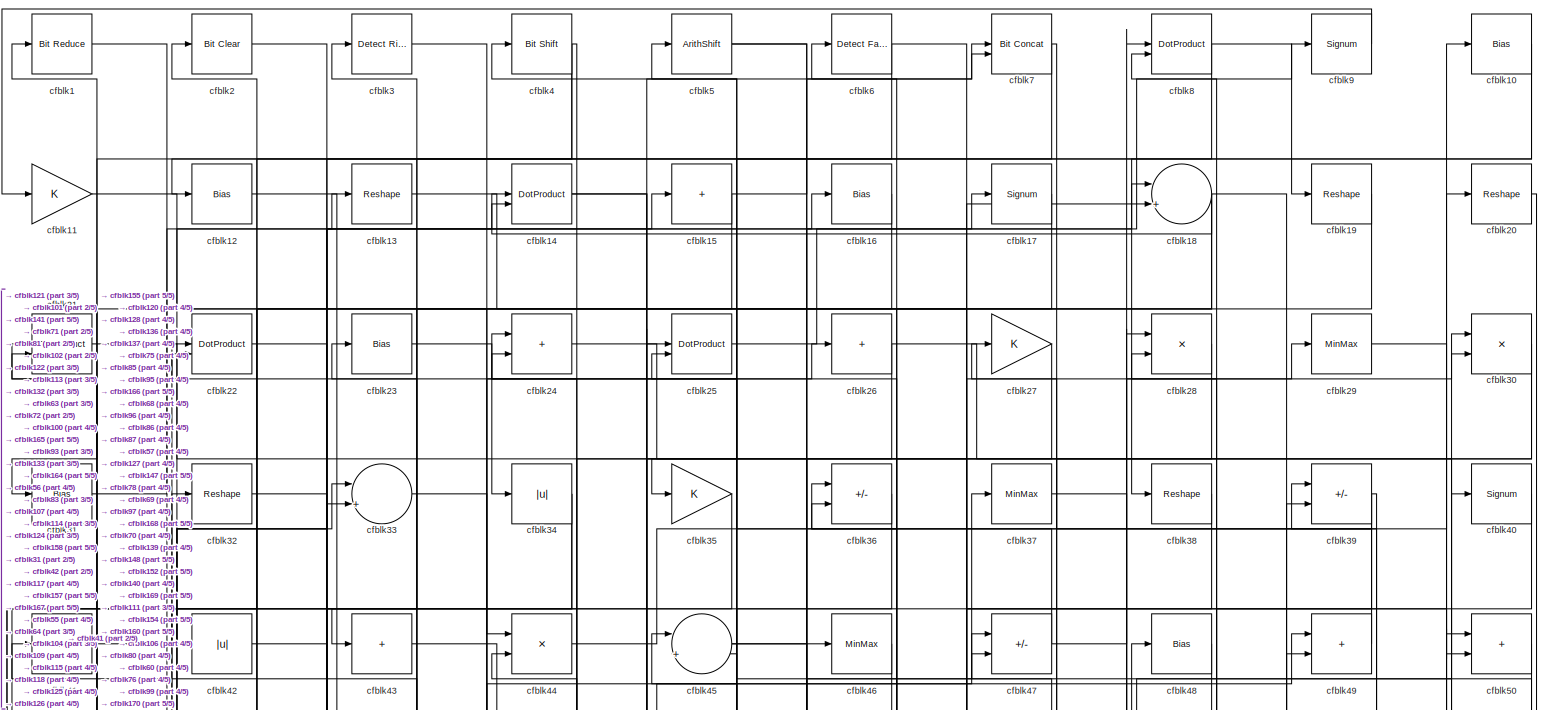
[diagram: root canvas - part 1/5, full width, top band]
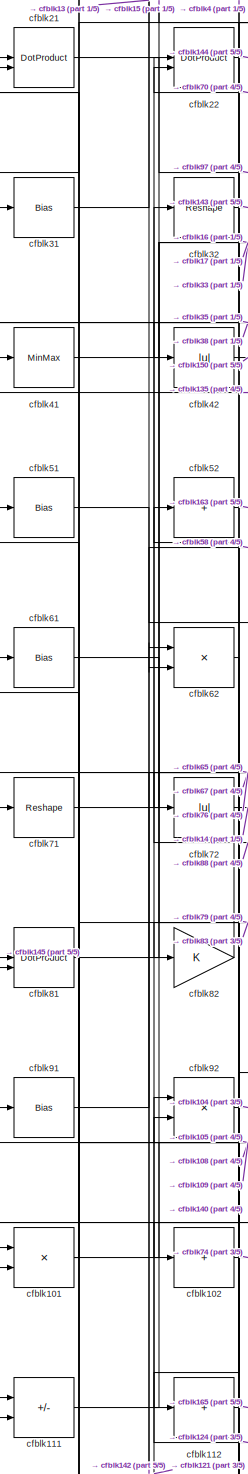
[diagram: root canvas - part 2/5, middle left region]
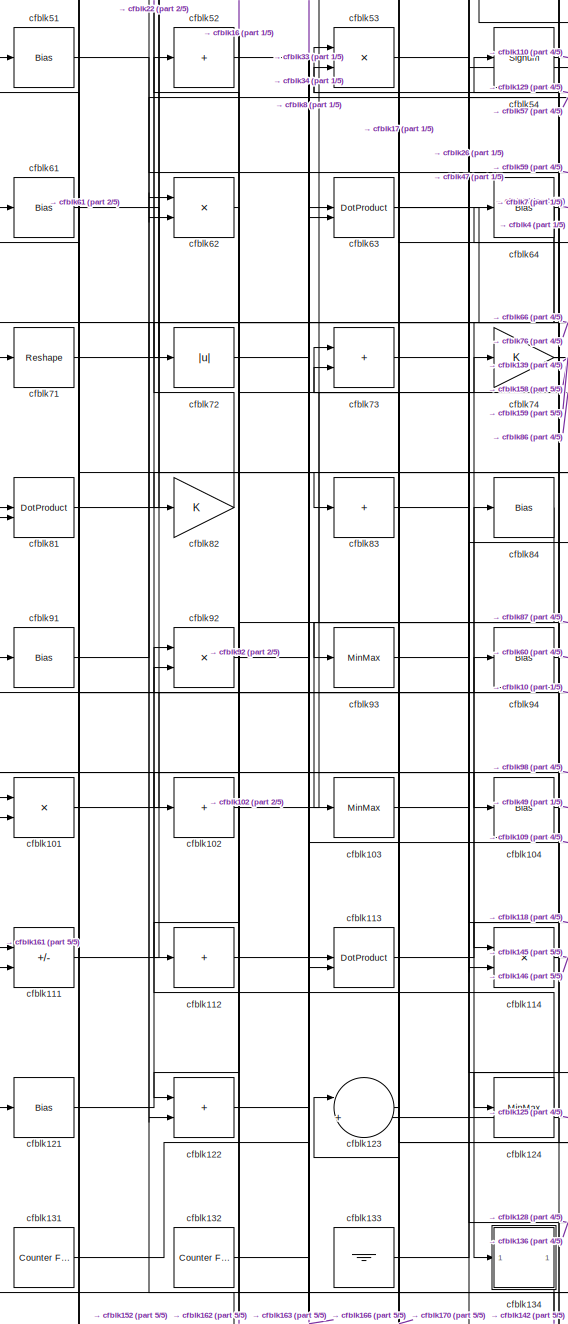
[diagram: root canvas - part 3/5, middle left region]
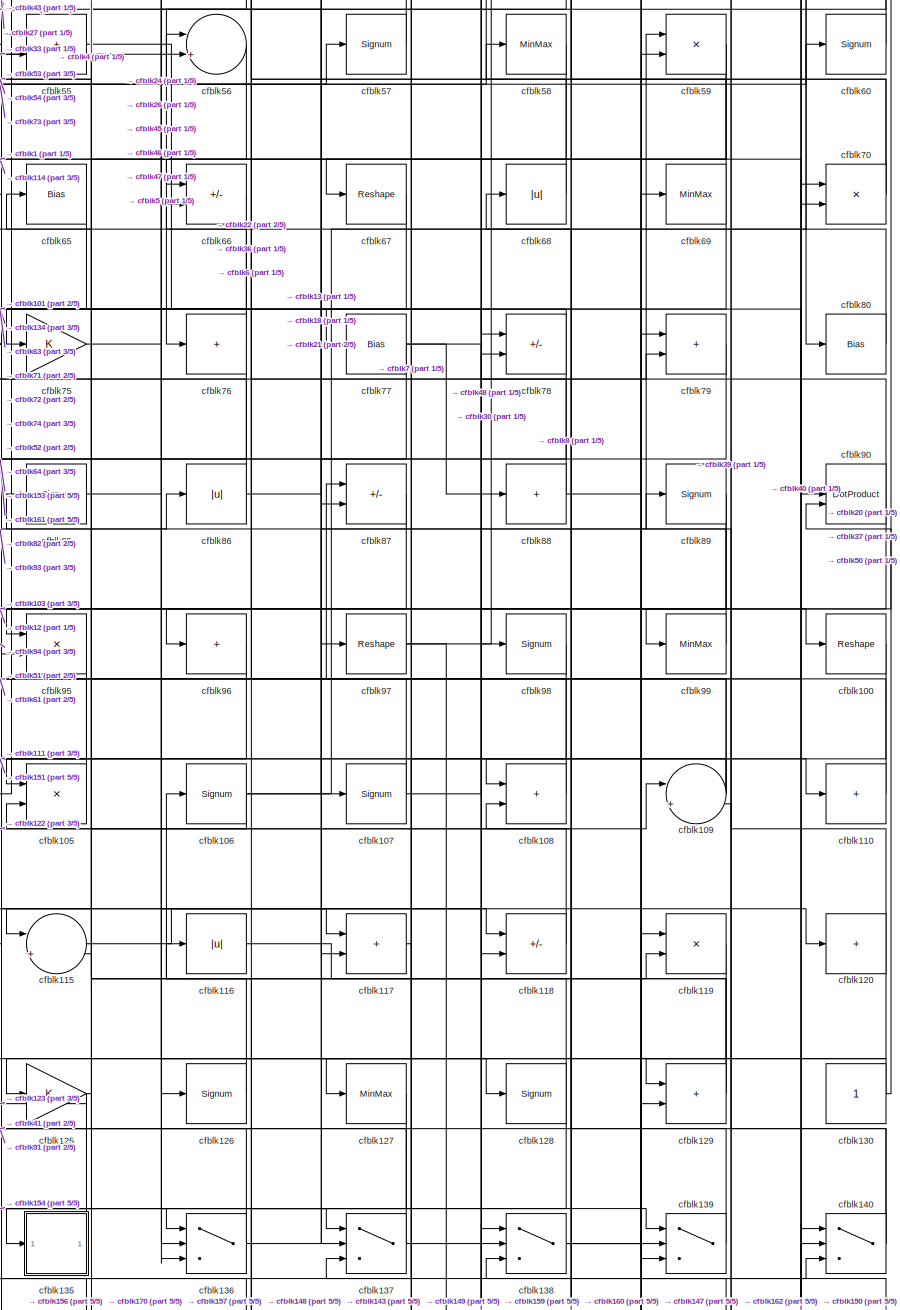
[diagram: root canvas - part 4/5, middle right region]
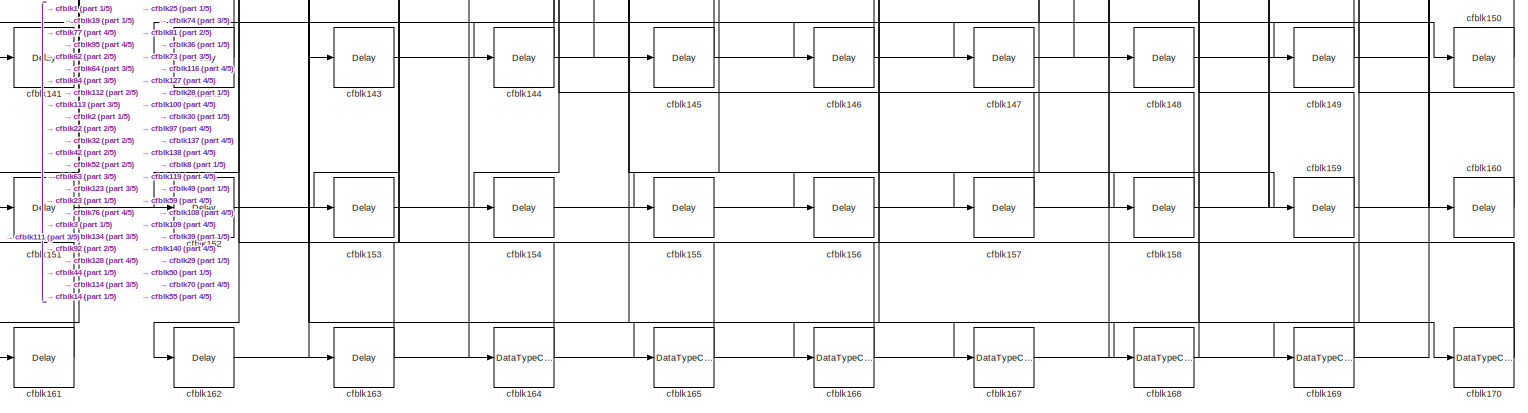
[diagram: root canvas - part 5/5, full width, bottom band]
MODEL slx_a859bc98c317
KIND model
CONFIG AbsTol = auto
CONFIG EnableMultiTasking = off
CONFIG FixedStep = auto
CONFIG MaxStep = auto
CONFIG MinStep = auto
CONFIG RelTol = 1e-3
CONFIG SampleTimeConstraint = Unconstrained
CONFIG SolverName = VariableStepAuto
CONFIG StartTime = 0.0
CONFIG StopTime = 10.0
BLOCK [Reference] cfblk1  REF=hdlsllib/Logic and Bit
Operations/Bit Reduce
  SourceBlock = hdlsllib/Logic and Bit\nOperations/Bit Reduce
  SourceType = Bit Reduce
BLOCK [Bias] cfblk10
  Bias = 0.0
  SaturateOnIntegerOverflow = off
BLOCK [Reshape] cfblk100
BLOCK [Product] cfblk101
  Inputs = */
  RndMeth = Zero
  SaturateOnIntegerOverflow = on
BLOCK [Sum] cfblk102
  IconShape = rectangular
  Inputs = +
BLOCK [MinMax] cfblk103
BLOCK [Bias] cfblk104
  Bias = 0.0
  SaturateOnIntegerOverflow = off
BLOCK [Product] cfblk105
  Inputs = */
  RndMeth = Zero
  SaturateOnIntegerOverflow = on
BLOCK [Signum] cfblk106
BLOCK [Signum] cfblk107
BLOCK [Sum] cfblk108
  IconShape = rectangular
BLOCK [Sum] cfblk109
  Inputs = |++
BLOCK [Gain] cfblk11
BLOCK [Sum] cfblk110
  IconShape = rectangular
  Inputs = +
BLOCK [Sum] cfblk111
  IconShape = rectangular
  Inputs = +-
BLOCK [Sum] cfblk112
  IconShape = rectangular
  Inputs = +
BLOCK [DotProduct] cfblk113
  OutDataTypeStr = Inherit: Inherit via internal rule
BLOCK [Product] cfblk114
  Inputs = */
  RndMeth = Zero
  SaturateOnIntegerOverflow = on
BLOCK [Sum] cfblk115
  Inputs = |++
BLOCK [Abs] cfblk116
  SaturateOnIntegerOverflow = off
BLOCK [Sum] cfblk117
  IconShape = rectangular
BLOCK [Sum] cfblk118
  IconShape = rectangular
  Inputs = +-
BLOCK [Product] cfblk119
  Inputs = */
  RndMeth = Zero
  SaturateOnIntegerOverflow = on
BLOCK [Bias] cfblk12
  Bias = 0.0
  SaturateOnIntegerOverflow = off
BLOCK [Sum] cfblk120
  IconShape = rectangular
  Inputs = +
BLOCK [Bias] cfblk121
  Bias = 0.0
  SaturateOnIntegerOverflow = off
BLOCK [Sum] cfblk122
  IconShape = rectangular
BLOCK [Sum] cfblk123
  Inputs = |++
BLOCK [MinMax] cfblk124
BLOCK [Gain] cfblk125
BLOCK [Signum] cfblk126
BLOCK [MinMax] cfblk127
BLOCK [Signum] cfblk128
BLOCK [Sum] cfblk129
  IconShape = rectangular
BLOCK [Reshape] cfblk13
BLOCK [Constant] cfblk130
  SampleTime = -1
BLOCK [Reference] cfblk131  REF=hdlsllib/Sources/Counter
Free-Running
  SourceBlock = hdlsllib/Sources/Counter\nFree-Running
  SourceType = Counter Free-Running
BLOCK [Reference] cfblk132  REF=hdlsllib/Sources/Counter
Free-Running
  SourceBlock = hdlsllib/Sources/Counter\nFree-Running
  SourceType = Counter Free-Running
BLOCK [Ground] cfblk133
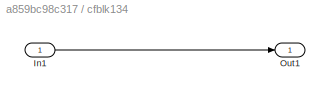
BLOCK [SubSystem] cfblk134
  LibrarySourceBlock = hdlsllib/Ports &\nSubsystems/Subsystem
BLOCK [Inport] cfblk134/In1
BLOCK [Outport] cfblk134/Out1
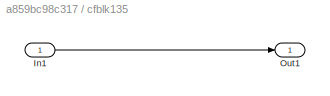
BLOCK [SubSystem] cfblk135
  LibrarySourceBlock = hdlsllib/Ports &\nSubsystems/Subsystem
BLOCK [Inport] cfblk135/In1
BLOCK [Outport] cfblk135/Out1
BLOCK [Switch] cfblk136
  InputSameDT = off
  SaturateOnIntegerOverflow = off
BLOCK [Switch] cfblk137
  InputSameDT = off
  SaturateOnIntegerOverflow = off
BLOCK [Switch] cfblk138
  InputSameDT = off
  SaturateOnIntegerOverflow = off
BLOCK [Switch] cfblk139
  InputSameDT = off
  SaturateOnIntegerOverflow = off
BLOCK [DotProduct] cfblk14
  OutDataTypeStr = Inherit: Inherit via internal rule
BLOCK [Switch] cfblk140
  InputSameDT = off
  SaturateOnIntegerOverflow = off
BLOCK [Delay] cfblk141
  InputPortMap = u0
  SampleTime = 1
BLOCK [Delay] cfblk142
  InputPortMap = u0
  SampleTime = 1
BLOCK [Delay] cfblk143
  InputPortMap = u0
  SampleTime = 1
BLOCK [Delay] cfblk144
  InputPortMap = u0
  SampleTime = 1
BLOCK [Delay] cfblk145
  InputPortMap = u0
  SampleTime = 1
BLOCK [Delay] cfblk146
  InputPortMap = u0
  SampleTime = 1
BLOCK [Delay] cfblk147
  InputPortMap = u0
  SampleTime = 1
BLOCK [Delay] cfblk148
  InputPortMap = u0
  SampleTime = 1
BLOCK [Delay] cfblk149
  InputPortMap = u0
  SampleTime = 1
BLOCK [Sum] cfblk15
  IconShape = rectangular
  Inputs = +
BLOCK [Delay] cfblk150
  InputPortMap = u0
  SampleTime = 1
BLOCK [Delay] cfblk151
  InputPortMap = u0
  SampleTime = 1
BLOCK [Delay] cfblk152
  InputPortMap = u0
  SampleTime = 1
BLOCK [Delay] cfblk153
  InputPortMap = u0
  SampleTime = 1
BLOCK [Delay] cfblk154
  InputPortMap = u0
  SampleTime = 1
BLOCK [Delay] cfblk155
  InputPortMap = u0
  SampleTime = 1
BLOCK [Delay] cfblk156
  InputPortMap = u0
  SampleTime = 1
BLOCK [Delay] cfblk157
  InputPortMap = u0
  SampleTime = 1
BLOCK [Delay] cfblk158
  InputPortMap = u0
  SampleTime = 1
BLOCK [Delay] cfblk159
  InputPortMap = u0
  SampleTime = 1
BLOCK [Bias] cfblk16
  Bias = 0.0
  SaturateOnIntegerOverflow = off
BLOCK [Delay] cfblk160
  InputPortMap = u0
  SampleTime = 1
BLOCK [Delay] cfblk161
  InputPortMap = u0
  SampleTime = 1
BLOCK [Delay] cfblk162
  InputPortMap = u0
  SampleTime = 1
BLOCK [Delay] cfblk163
  InputPortMap = u0
  SampleTime = 1
BLOCK [DataTypeConversion] cfblk164
  OutDataTypeStr = uint8
  RndMeth = Floor
  SaturateOnIntegerOverflow = off
BLOCK [DataTypeConversion] cfblk165
  OutDataTypeStr = uint8
  RndMeth = Floor
  SaturateOnIntegerOverflow = off
BLOCK [DataTypeConversion] cfblk166
  OutDataTypeStr = uint8
  RndMeth = Floor
  SaturateOnIntegerOverflow = off
BLOCK [DataTypeConversion] cfblk167
  OutDataTypeStr = uint8
  RndMeth = Floor
  SaturateOnIntegerOverflow = off
BLOCK [DataTypeConversion] cfblk168
  OutDataTypeStr = uint8
  RndMeth = Floor
  SaturateOnIntegerOverflow = off
BLOCK [DataTypeConversion] cfblk169
  OutDataTypeStr = boolean
  RndMeth = Floor
  SaturateOnIntegerOverflow = off
BLOCK [Signum] cfblk17
BLOCK [DataTypeConversion] cfblk170
  RndMeth = Floor
  SaturateOnIntegerOverflow = off
BLOCK [Sum] cfblk18
  Inputs = |++
BLOCK [Reshape] cfblk19
BLOCK [Reference] cfblk2  REF=simulink/Logic and Bit
Operations/Bit Clear
  LibrarySourceBlock = hdlsllib/Logic and Bit\nOperations/Bit Clear
  SourceBlock = simulink/Logic and Bit\nOperations/Bit Clear
  SourceType = Bit Clear
BLOCK [Reshape] cfblk20
BLOCK [DotProduct] cfblk21
  OutDataTypeStr = Inherit: Inherit via internal rule
BLOCK [DotProduct] cfblk22
  OutDataTypeStr = Inherit: Inherit via internal rule
BLOCK [Bias] cfblk23
  Bias = 0.0
  SaturateOnIntegerOverflow = off
BLOCK [Sum] cfblk24
  IconShape = rectangular
BLOCK [DotProduct] cfblk25
  OutDataTypeStr = Inherit: Inherit via internal rule
BLOCK [Sum] cfblk26
  IconShape = rectangular
  Inputs = +
BLOCK [Gain] cfblk27
BLOCK [Product] cfblk28
  Inputs = */
  RndMeth = Zero
  SaturateOnIntegerOverflow = on
BLOCK [MinMax] cfblk29
BLOCK [Reference] cfblk3  REF=hdlsllib/Logic and Bit
Operations/Detect Rise
Positive
  SourceBlock = hdlsllib/Logic and Bit\nOperations/Detect Rise\nPositive
  SourceType = Detect Rise Positive
BLOCK [Product] cfblk30
  Inputs = */
  RndMeth = Zero
  SaturateOnIntegerOverflow = on
BLOCK [Bias] cfblk31
  Bias = 0.0
  SaturateOnIntegerOverflow = off
BLOCK [Reshape] cfblk32
BLOCK [Sum] cfblk33
  Inputs = |++
BLOCK [Abs] cfblk34
  SaturateOnIntegerOverflow = off
BLOCK [Gain] cfblk35
BLOCK [Sum] cfblk36
  IconShape = rectangular
  Inputs = +-
BLOCK [MinMax] cfblk37
BLOCK [Reshape] cfblk38
BLOCK [Sum] cfblk39
  IconShape = rectangular
  Inputs = +-
BLOCK [Reference] cfblk4  REF=hdlsllib/Logic and Bit
Operations/Bit Shift
  SourceBlock = hdlsllib/Logic and Bit\nOperations/Bit Shift
  SourceType = Bit Shift
BLOCK [Signum] cfblk40
BLOCK [MinMax] cfblk41
BLOCK [Abs] cfblk42
  SaturateOnIntegerOverflow = off
BLOCK [Sum] cfblk43
  IconShape = rectangular
  Inputs = +
BLOCK [Product] cfblk44
  Inputs = */
  RndMeth = Zero
  SaturateOnIntegerOverflow = on
BLOCK [Sum] cfblk45
  Inputs = |++
BLOCK [MinMax] cfblk46
BLOCK [Sum] cfblk47
  IconShape = rectangular
  Inputs = +-
BLOCK [Bias] cfblk48
  Bias = 0.0
  SaturateOnIntegerOverflow = off
BLOCK [Sum] cfblk49
  IconShape = rectangular
BLOCK [ArithShift] cfblk5
  BitShiftNumber = 8
  InputPortMap = u0
BLOCK [Sum] cfblk50
  IconShape = rectangular
BLOCK [Bias] cfblk51
  Bias = 0.0
  SaturateOnIntegerOverflow = off
BLOCK [Sum] cfblk52
  IconShape = rectangular
  Inputs = +
BLOCK [Product] cfblk53
  Inputs = */
  RndMeth = Zero
  SaturateOnIntegerOverflow = on
BLOCK [Signum] cfblk54
BLOCK [Sum] cfblk55
  IconShape = rectangular
BLOCK [Sum] cfblk56
  Inputs = |++
BLOCK [Signum] cfblk57
BLOCK [MinMax] cfblk58
BLOCK [Product] cfblk59
  Inputs = */
  RndMeth = Zero
  SaturateOnIntegerOverflow = on
BLOCK [Reference] cfblk6  REF=hdlsllib/Logic and Bit
Operations/Detect Fall
Negative
  SourceBlock = hdlsllib/Logic and Bit\nOperations/Detect Fall\nNegative
  SourceType = Detect Fall Negative
BLOCK [Signum] cfblk60
BLOCK [Bias] cfblk61
  Bias = 0.0
  SaturateOnIntegerOverflow = off
BLOCK [Product] cfblk62
  Inputs = */
  RndMeth = Zero
  SaturateOnIntegerOverflow = on
BLOCK [DotProduct] cfblk63
  OutDataTypeStr = Inherit: Inherit via internal rule
BLOCK [Bias] cfblk64
  Bias = 0.0
  SaturateOnIntegerOverflow = off
BLOCK [Bias] cfblk65
  Bias = 0.0
  SaturateOnIntegerOverflow = off
BLOCK [Sum] cfblk66
  IconShape = rectangular
  Inputs = +-
BLOCK [Reshape] cfblk67
BLOCK [Abs] cfblk68
  SaturateOnIntegerOverflow = off
BLOCK [MinMax] cfblk69
BLOCK [Reference] cfblk7  REF=hdlsllib/Logic and Bit
Operations/Bit Concat
  SourceBlock = hdlsllib/Logic and Bit\nOperations/Bit Concat
  SourceType = Bit Concat
BLOCK [Product] cfblk70
  Inputs = */
  RndMeth = Zero
  SaturateOnIntegerOverflow = on
BLOCK [Reshape] cfblk71
BLOCK [Abs] cfblk72
  SaturateOnIntegerOverflow = off
BLOCK [Sum] cfblk73
  IconShape = rectangular
BLOCK [Gain] cfblk74
BLOCK [Gain] cfblk75
BLOCK [Sum] cfblk76
  IconShape = rectangular
  Inputs = +
BLOCK [Bias] cfblk77
  Bias = 0.0
  SaturateOnIntegerOverflow = off
BLOCK [Sum] cfblk78
  IconShape = rectangular
  Inputs = +-
BLOCK [Sum] cfblk79
  IconShape = rectangular
BLOCK [DotProduct] cfblk8
  OutDataTypeStr = Inherit: Inherit via internal rule
BLOCK [Bias] cfblk80
  Bias = 0.0
  SaturateOnIntegerOverflow = off
BLOCK [DotProduct] cfblk81
  OutDataTypeStr = Inherit: Inherit via internal rule
BLOCK [Gain] cfblk82
BLOCK [Sum] cfblk83
  IconShape = rectangular
  Inputs = +
BLOCK [Bias] cfblk84
  Bias = 0.0
  SaturateOnIntegerOverflow = off
BLOCK [Signum] cfblk85
BLOCK [Abs] cfblk86
  SaturateOnIntegerOverflow = off
BLOCK [Sum] cfblk87
  IconShape = rectangular
  Inputs = +-
BLOCK [Sum] cfblk88
  IconShape = rectangular
  Inputs = +
BLOCK [Signum] cfblk89
BLOCK [Signum] cfblk9
BLOCK [DotProduct] cfblk90
  OutDataTypeStr = Inherit: Inherit via internal rule
BLOCK [Bias] cfblk91
  Bias = 0.0
  SaturateOnIntegerOverflow = off
BLOCK [Product] cfblk92
  Inputs = */
  RndMeth = Zero
  SaturateOnIntegerOverflow = on
BLOCK [MinMax] cfblk93
BLOCK [Bias] cfblk94
  Bias = 0.0
  SaturateOnIntegerOverflow = off
BLOCK [Product] cfblk95
  Inputs = */
  RndMeth = Zero
  SaturateOnIntegerOverflow = on
BLOCK [Sum] cfblk96
  IconShape = rectangular
  Inputs = +
BLOCK [Reshape] cfblk97
BLOCK [Signum] cfblk98
BLOCK [MinMax] cfblk99
LINE cfblk100:1 -> cfblk157:1
NET cfblk101:1 -> cfblk21:2, cfblk33:1
LINE cfblk102:1 -> cfblk74:1
LINE cfblk103:1 -> cfblk136:1
LINE cfblk104:1 -> cfblk49:1
LINE cfblk105:1 -> cfblk61:1
NET cfblk106:1 -> cfblk105:2, cfblk40:1, cfblk89:1
NET cfblk107:1 -> cfblk36:1, cfblk78:2
LINE cfblk108:1 -> cfblk51:1
NET cfblk109:1 -> cfblk108:1, cfblk21:1, cfblk45:1
NET cfblk10:1 -> cfblk38:1, cfblk43:1
LINE cfblk110:1 -> cfblk87:1
LINE cfblk111:1 -> cfblk10:1
LINE cfblk112:1 -> cfblk165:1
LINE cfblk113:1 -> cfblk84:1
NET cfblk114:1 -> cfblk145:1, cfblk146:1
LINE cfblk115:1 -> cfblk118:1
LINE cfblk116:1 -> cfblk119:2
LINE cfblk117:1 -> cfblk137:3
LINE cfblk118:1 -> cfblk5:1
LINE cfblk119:1 -> cfblk125:1
LINE cfblk11:1 -> cfblk44:1
NET cfblk120:1 -> cfblk139:3, cfblk85:1
LINE cfblk121:1 -> cfblk92:1
LINE cfblk122:1 -> cfblk109:1
LINE cfblk123:1 -> cfblk73:1
LINE cfblk124:1 -> cfblk22:1
NET cfblk125:1 -> cfblk123:2, cfblk45:2
LINE cfblk126:1 -> cfblk4:1
LINE cfblk127:1 -> cfblk156:1
NET cfblk128:1 -> cfblk154:1, cfblk54:1
NET cfblk129:1 -> cfblk106:1, cfblk53:1
LINE cfblk12:1 -> cfblk100:1
NET cfblk130:1 -> cfblk129:1, cfblk90:2
LINE cfblk131:1 -> cfblk94:1
LINE cfblk132:1 -> cfblk33:2
LINE cfblk133:1 -> cfblk47:2
LINE cfblk134/In1:1 -> cfblk134/Out1:1
LINE cfblk134:1 -> cfblk142:1
LINE cfblk135/In1:1 -> cfblk135/Out1:1
LINE cfblk135:1 -> cfblk41:1
NET cfblk136:1 -> cfblk24:1, cfblk30:2
NET cfblk137:1 -> cfblk149:1, cfblk65:1
NET cfblk138:1 -> cfblk140:3, cfblk79:1
LINE cfblk139:1 -> cfblk68:1
LINE cfblk13:1 -> cfblk117:2
NET cfblk140:1 -> cfblk39:1, cfblk91:1
LINE cfblk141:1 -> cfblk1:1
LINE cfblk142:1 -> cfblk62:1
LINE cfblk143:1 -> cfblk138:1
LINE cfblk144:1 -> cfblk92:2
LINE cfblk145:1 -> cfblk81:1
LINE cfblk146:1 -> cfblk73:2
LINE cfblk147:1 -> cfblk140:2
LINE cfblk148:1 -> cfblk39:2
LINE cfblk149:1 -> cfblk108:2
NET cfblk14:1 -> cfblk117:1, cfblk167:1
LINE cfblk150:1 -> cfblk55:1
LINE cfblk151:1 -> cfblk119:1
LINE cfblk152:1 -> cfblk49:2
LINE cfblk153:1 -> cfblk140:1
LINE cfblk154:1 -> cfblk50:1
LINE cfblk155:1 -> cfblk8:1
LINE cfblk156:1 -> cfblk59:2
LINE cfblk157:1 -> cfblk25:1
LINE cfblk158:1 -> cfblk44:2
LINE cfblk159:1 -> cfblk138:3
NET cfblk15:1 -> cfblk102:1, cfblk7:1
LINE cfblk160:1 -> cfblk109:2
LINE cfblk161:1 -> cfblk111:1
LINE cfblk162:1 -> cfblk70:1
LINE cfblk163:1 -> cfblk63:1
LINE cfblk164:1 -> cfblk23:1
LINE cfblk165:1 -> cfblk3:1
LINE cfblk166:1 -> cfblk113:1
LINE cfblk167:1 -> cfblk28:1
LINE cfblk168:1 -> cfblk28:2
LINE cfblk169:1 -> cfblk2:1
LINE cfblk16:1 -> cfblk122:1
NET cfblk170:1 -> cfblk116:1, cfblk123:1
LINE cfblk17:1 -> cfblk93:1
NET cfblk18:1 -> cfblk115:2, cfblk139:2, cfblk14:2, cfblk96:1
LINE cfblk19:1 -> cfblk141:1
LINE cfblk1:1 -> cfblk70:2
LINE cfblk20:1 -> cfblk99:1
LINE cfblk21:1 -> cfblk97:1
LINE cfblk22:1 -> cfblk144:1
LINE cfblk23:1 -> cfblk34:1
LINE cfblk24:1 -> cfblk126:1
LINE cfblk25:1 -> cfblk9:1
NET cfblk26:1 -> cfblk136:3, cfblk80:1
LINE cfblk27:1 -> cfblk55:2
LINE cfblk28:1 -> cfblk166:1
LINE cfblk29:1 -> cfblk160:1
LINE cfblk2:1 -> cfblk170:1
NET cfblk30:1 -> cfblk114:1, cfblk147:1
LINE cfblk31:1 -> cfblk13:1
LINE cfblk32:1 -> cfblk143:1
LINE cfblk33:1 -> cfblk56:2
NET cfblk34:1 -> cfblk113:2, cfblk121:1
LINE cfblk35:1 -> cfblk101:2
LINE cfblk36:1 -> cfblk155:1
LINE cfblk37:1 -> cfblk78:1
LINE cfblk38:1 -> cfblk81:2
NET cfblk39:1 -> cfblk168:1, cfblk169:1, cfblk36:2
LINE cfblk3:1 -> cfblk164:1
LINE cfblk40:1 -> cfblk87:2
LINE cfblk41:1 -> cfblk17:1
LINE cfblk42:1 -> cfblk150:1
LINE cfblk43:1 -> cfblk107:1
LINE cfblk44:1 -> cfblk20:1
NET cfblk45:1 -> cfblk120:1, cfblk18:1
LINE cfblk46:1 -> cfblk95:1
NET cfblk47:1 -> cfblk25:2, cfblk29:1
LINE cfblk48:1 -> cfblk136:2
LINE cfblk49:1 -> cfblk27:1
NET cfblk4:1 -> cfblk124:1, cfblk31:1, cfblk42:1
LINE cfblk50:1 -> cfblk76:1
LINE cfblk51:1 -> cfblk62:2
LINE cfblk52:1 -> cfblk163:1
LINE cfblk53:1 -> cfblk118:2
LINE cfblk54:1 -> cfblk110:1
LINE cfblk55:1 -> cfblk90:1
LINE cfblk56:1 -> cfblk66:1
LINE cfblk57:1 -> cfblk24:2
LINE cfblk58:1 -> cfblk75:1
NET cfblk59:1 -> cfblk114:2, cfblk67:1
NET cfblk5:1 -> cfblk128:1, cfblk137:1
LINE cfblk60:1 -> cfblk37:1
LINE cfblk61:1 -> cfblk83:1
LINE cfblk62:1 -> cfblk112:1
NET cfblk63:1 -> cfblk129:2, cfblk98:1
NET cfblk64:1 -> cfblk122:2, cfblk162:1, cfblk7:2
LINE cfblk65:1 -> cfblk101:1
LINE cfblk66:1 -> cfblk134:1
LINE cfblk67:1 -> cfblk71:1
LINE cfblk68:1 -> cfblk6:1
NET cfblk69:1 -> cfblk135:1, cfblk48:1
NET cfblk6:1 -> cfblk35:1, cfblk50:2
NET cfblk70:1 -> cfblk22:2, cfblk8:2
LINE cfblk71:1 -> cfblk15:1
LINE cfblk72:1 -> cfblk14:1
LINE cfblk73:1 -> cfblk57:1
NET cfblk74:1 -> cfblk139:1, cfblk158:1, cfblk159:1
LINE cfblk75:1 -> cfblk47:1
NET cfblk76:1 -> cfblk153:1, cfblk53:2, cfblk72:1
NET cfblk77:1 -> cfblk161:1, cfblk79:2, cfblk88:1
NET cfblk78:1 -> cfblk137:2, cfblk77:1
LINE cfblk79:1 -> cfblk82:1
NET cfblk7:1 -> cfblk127:1, cfblk12:1
LINE cfblk80:1 -> cfblk66:2
LINE cfblk81:1 -> cfblk16:1
LINE cfblk82:1 -> cfblk32:1
LINE cfblk83:1 -> cfblk26:1
LINE cfblk84:1 -> cfblk152:1
LINE cfblk85:1 -> cfblk46:1
NET cfblk86:1 -> cfblk18:2, cfblk64:1
LINE cfblk87:1 -> cfblk103:1
NET cfblk88:1 -> cfblk52:1, cfblk69:1
NET cfblk89:1 -> cfblk115:1, cfblk95:2
NET cfblk8:1 -> cfblk19:1, cfblk63:2
NET cfblk90:1 -> cfblk138:2, cfblk56:1
LINE cfblk91:1 -> cfblk58:1
LINE cfblk92:1 -> cfblk104:1
LINE cfblk93:1 -> cfblk86:1
LINE cfblk94:1 -> cfblk60:1
LINE cfblk95:1 -> cfblk151:1
LINE cfblk96:1 -> cfblk105:1
NET cfblk97:1 -> cfblk148:1, cfblk30:1
LINE cfblk98:1 -> cfblk111:2
LINE cfblk99:1 -> cfblk59:1
LINE cfblk9:1 -> cfblk11:1
note: NET lines group one-source signal fan-out (src -> all destinations, sorted); 1:1 wires keep LINE
